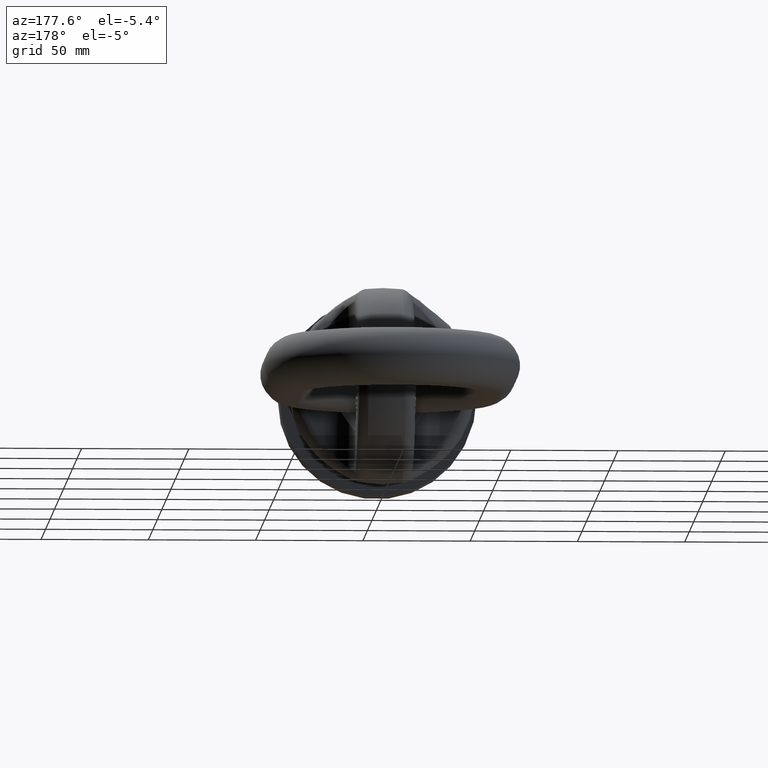
[diagram: clean part render]
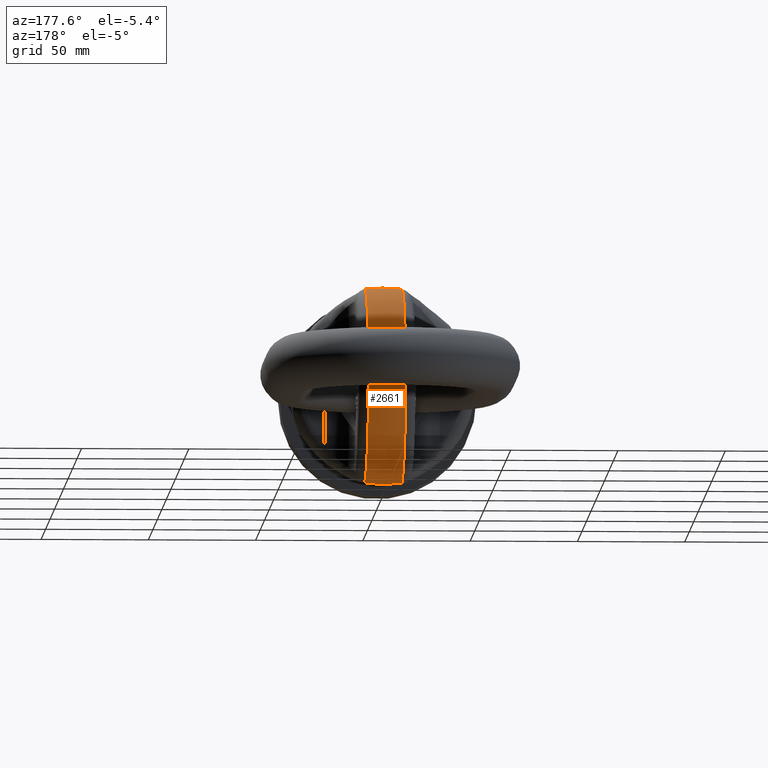
[diagram: same view with one face highlighted and labeled with its STEP entity id]
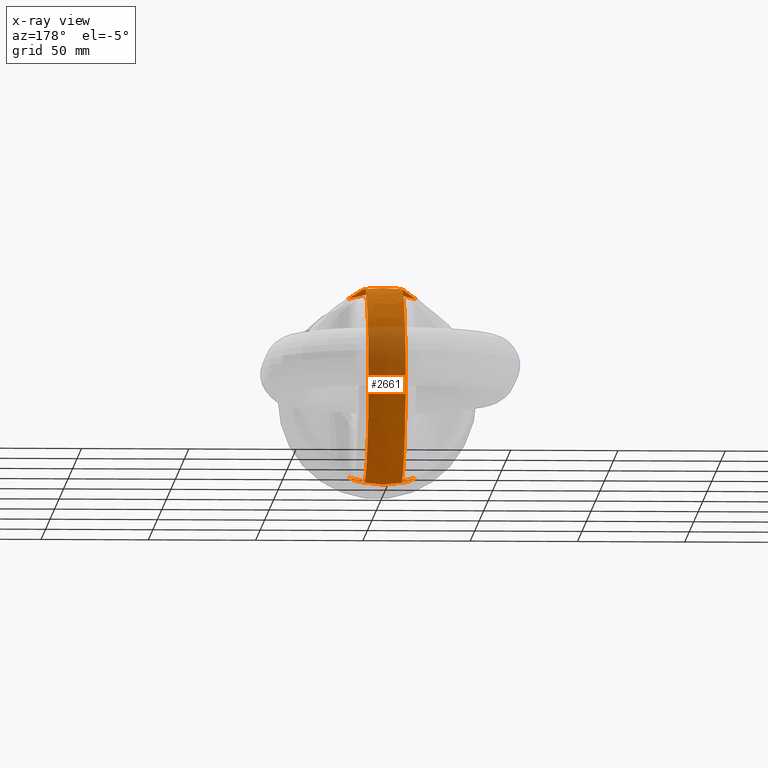
[diagram: x-ray of the same camera — body ghosted, the highlighted face saturated]
A machine part, auxiliary view. The second image highlights one B-rep face of the part: STEP entity #2661.
The next image is the same camera in x-ray: the body ghosted, the highlighted face saturated — about 29% of this face is hidden behind the body in this view.
In plain terms, the highlighted spherical surface has radius 46 mm.
Its self-contained STEP definition (entity closure, byte-faithful):
#307=SPHERICAL_SURFACE('',#5648,46.);
#349=B_SPLINE_CURVE_WITH_KNOTS('',3,(#7013,#7014,#7015,#7016,#7017,#7018),
 .UNSPECIFIED.,.F.,.F.,(4,2,4),(0.,0.5,1.),.UNSPECIFIED.);
#350=B_SPLINE_CURVE_WITH_KNOTS('',3,(#7022,#7023,#7024,#7025,#7026,#7027),
 .UNSPECIFIED.,.F.,.F.,(4,2,4),(0.,0.5,1.),.UNSPECIFIED.);
#351=B_SPLINE_CURVE_WITH_KNOTS('',3,(#7031,#7032,#7033,#7034,#7035,#7036),
 .UNSPECIFIED.,.F.,.F.,(4,2,4),(0.,0.5,1.),.UNSPECIFIED.);
#352=B_SPLINE_CURVE_WITH_KNOTS('',3,(#7040,#7041,#7042,#7043,#7044,#7045),
 .UNSPECIFIED.,.F.,.F.,(4,2,4),(0.,0.5,1.),.UNSPECIFIED.);
#1814=FACE_OUTER_BOUND('',#3096,.T.);
#2661=ADVANCED_FACE('',(#1814),#307,.T.);
#3096=EDGE_LOOP('',(#3513,#3514,#3515,#3516,#3517,#3518,#3519,#3520));
#3513=ORIENTED_EDGE('',*,*,#5058,.F.);
#3514=ORIENTED_EDGE('',*,*,#5059,.T.);
#3515=ORIENTED_EDGE('',*,*,#5060,.T.);
#3516=ORIENTED_EDGE('',*,*,#5061,.T.);
#3517=ORIENTED_EDGE('',*,*,#5062,.F.);
#3518=ORIENTED_EDGE('',*,*,#5063,.T.);
#3519=ORIENTED_EDGE('',*,*,#5064,.T.);
#3520=ORIENTED_EDGE('',*,*,#5065,.T.);
#4645=VERTEX_POINT('',#7011);
#4646=VERTEX_POINT('',#7012);
#4647=VERTEX_POINT('',#7019);
#4648=VERTEX_POINT('',#7021);
#4649=VERTEX_POINT('',#7028);
#4650=VERTEX_POINT('',#7030);
#4651=VERTEX_POINT('',#7037);
#4652=VERTEX_POINT('',#7039);
#5058=EDGE_CURVE('',#4645,#4646,#5553,.T.);
#5059=EDGE_CURVE('',#4645,#4647,#349,.T.);
#5060=EDGE_CURVE('',#4647,#4648,#5554,.T.);
#5061=EDGE_CURVE('',#4648,#4649,#350,.T.);
#5062=EDGE_CURVE('',#4650,#4649,#5555,.T.);
#5063=EDGE_CURVE('',#4650,#4651,#351,.T.);
#5064=EDGE_CURVE('',#4651,#4652,#5556,.T.);
#5065=EDGE_CURVE('',#4652,#4646,#352,.T.);
#5553=CIRCLE('',#5644,44.6040210296982);
#5554=CIRCLE('',#5645,45.1841717308174);
#5555=CIRCLE('',#5646,44.6040210296982);
#5556=CIRCLE('',#5647,45.1841717308174);
#5644=AXIS2_PLACEMENT_3D('',#7010,#5959,#5960);
#5645=AXIS2_PLACEMENT_3D('',#7020,#5961,#5962);
#5646=AXIS2_PLACEMENT_3D('',#7029,#5963,#5964);
#5647=AXIS2_PLACEMENT_3D('',#7038,#5965,#5966);
#5648=AXIS2_PLACEMENT_3D('',#7046,#5967,#5968);
#5959=DIRECTION('',(0.,-1.,0.));
#5960=DIRECTION('',(0.,0.,-1.));
#5961=DIRECTION('',(1.,3.46944695195361E-16,2.34291072916505E-15));
#5962=DIRECTION('',(3.4553054057961E-16,-1.,8.1838071864034E-31));
#5963=DIRECTION('',(0.,-1.,0.));
#5964=DIRECTION('',(0.,0.,-1.));
#5965=DIRECTION('',(-1.,3.46944695195361E-16,0.));
#5966=DIRECTION('',(-3.4553054057961E-16,-1.,0.));
#5967=DIRECTION('',(6.12323399573677E-17,-1.,0.));
#5968=DIRECTION('',(1.,0.,0.));
#7010=CARTESIAN_POINT('',(0.,62.7536091130426,0.));
#7011=CARTESIAN_POINT('',(-15.7785054320884,62.7536091130426,-41.7199887146116));
#7012=CARTESIAN_POINT('',(15.7785054320885,62.7536091130426,-41.7199887146116));
#7013=CARTESIAN_POINT('',(-15.7785054320884,62.7536091130426,-41.7199887146116));
#7014=CARTESIAN_POINT('',(-13.6645997934333,64.7194899997486,-43.0494074944425));
#7015=CARTESIAN_POINT('',(-11.8398754199306,67.1992902871253,-44.0390450207892));
#7016=CARTESIAN_POINT('',(-9.31533294389543,72.8464332215649,-45.14159550496));
#7017=CARTESIAN_POINT('',(-8.62499999999988,76.0102002256462,-45.2517133089261));
#7018=CARTESIAN_POINT('',(-8.62499999999988,79.175,-44.8868438409297));
#7019=CARTESIAN_POINT('',(-8.62499999999988,79.175,-44.8868438409297));
#7020=CARTESIAN_POINT('',(-8.62499999999999,74.,-2.02076050390485E-14));
#7021=CARTESIAN_POINT('',(-8.6250000000001,79.175,44.8868438409296));
#7022=CARTESIAN_POINT('',(-8.6250000000001,79.175,44.8868438409296));
#7023=CARTESIAN_POINT('',(-8.6250000000001,76.0052514425334,45.2522838536652));
#7024=CARTESIAN_POINT('',(-9.32268421481276,72.8256792035463,45.1389133638721));
#7025=CARTESIAN_POINT('',(-11.8429935052399,67.1966433800053,44.037152649885));
#7026=CARTESIAN_POINT('',(-13.6760137386568,64.7088753079922,43.0422293532547));
#7027=CARTESIAN_POINT('',(-15.7785054320886,62.7536091130426,41.7199887146115));
#7028=CARTESIAN_POINT('',(-15.7785054320886,62.7536091130426,41.7199887146115));
#7029=CARTESIAN_POINT('',(0.,62.7536091130426,0.));
#7030=CARTESIAN_POINT('',(15.7785054320885,62.7536091130426,41.7199887146116));
#7031=CARTESIAN_POINT('',(15.7785054320885,62.7536091130426,41.7199887146116));
#7032=CARTESIAN_POINT('',(13.6645997934334,64.7194899997486,43.0494074944424));
#7033=CARTESIAN_POINT('',(11.8398754199307,67.1992902871253,44.0390450207892));
#7034=CARTESIAN_POINT('',(9.31533294389554,72.8464332215649,45.14159550496));
#7035=CARTESIAN_POINT('',(8.62499999999999,76.0102002256462,45.2517133089261));
#7036=CARTESIAN_POINT('',(8.62499999999999,79.175,44.8868438409296));
#7037=CARTESIAN_POINT('',(8.62499999999999,79.175,44.8868438409296));
#7038=CARTESIAN_POINT('',(8.62499999999999,74.,0.));
#7039=CARTESIAN_POINT('',(8.62499999999999,79.175,-44.8868438409296));
#7040=CARTESIAN_POINT('',(8.625,79.175,-44.8868438409296));
#7041=CARTESIAN_POINT('',(8.62499999999999,76.0052514425334,-45.2522838536652));
#7042=CARTESIAN_POINT('',(9.32268421481267,72.8256792035463,-45.1389133638721));
#7043=CARTESIAN_POINT('',(11.8429935052398,67.1966433800053,-44.037152649885));
#7044=CARTESIAN_POINT('',(13.6760137386567,64.7088753079922,-43.0422293532547));
#7045=CARTESIAN_POINT('',(15.7785054320885,62.7536091130426,-41.7199887146116));
#7046=CARTESIAN_POINT('',(0.,74.,0.));